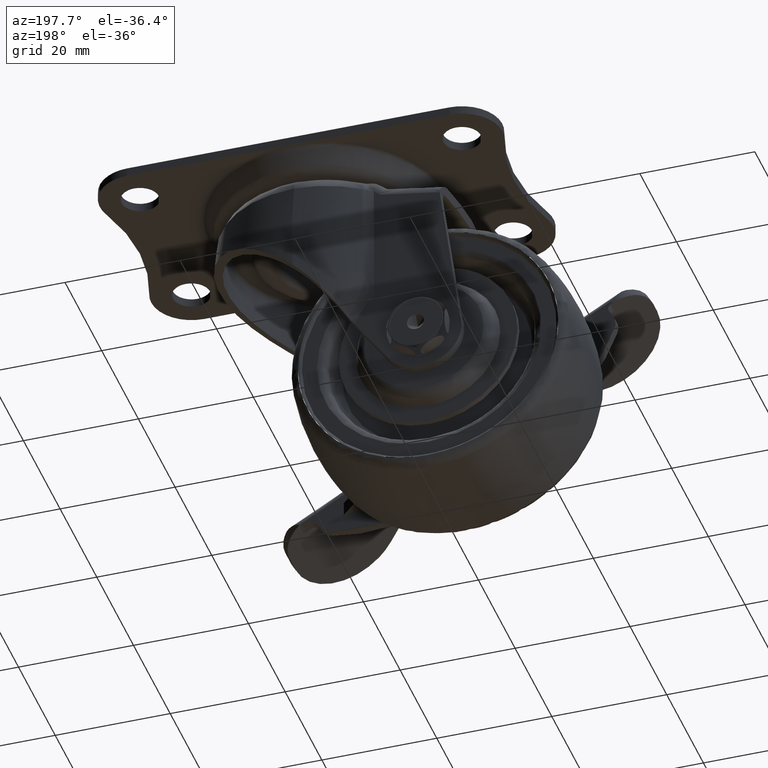
[diagram: clean part render]
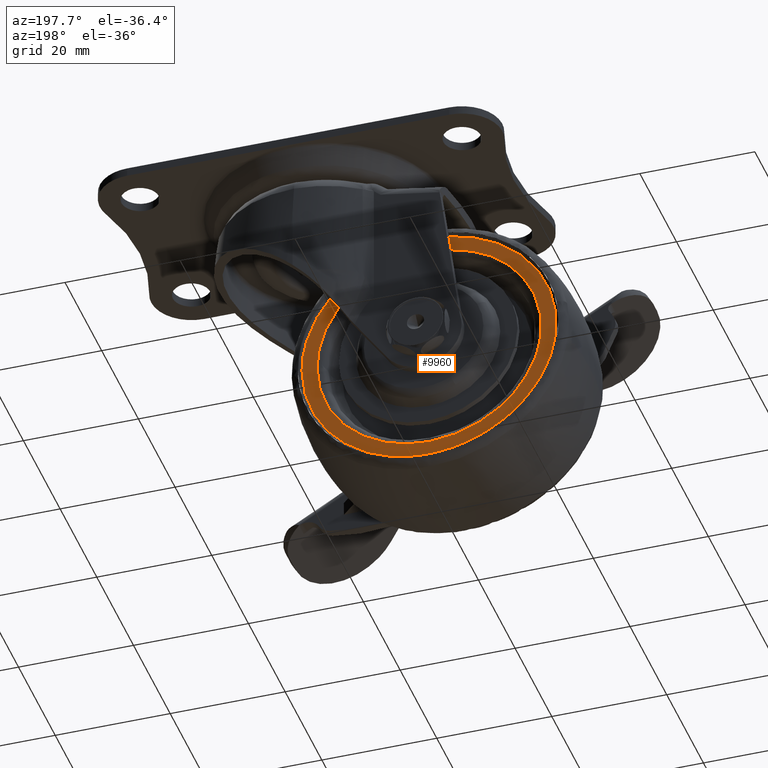
[diagram: same view with one face highlighted and labeled with its STEP entity id]
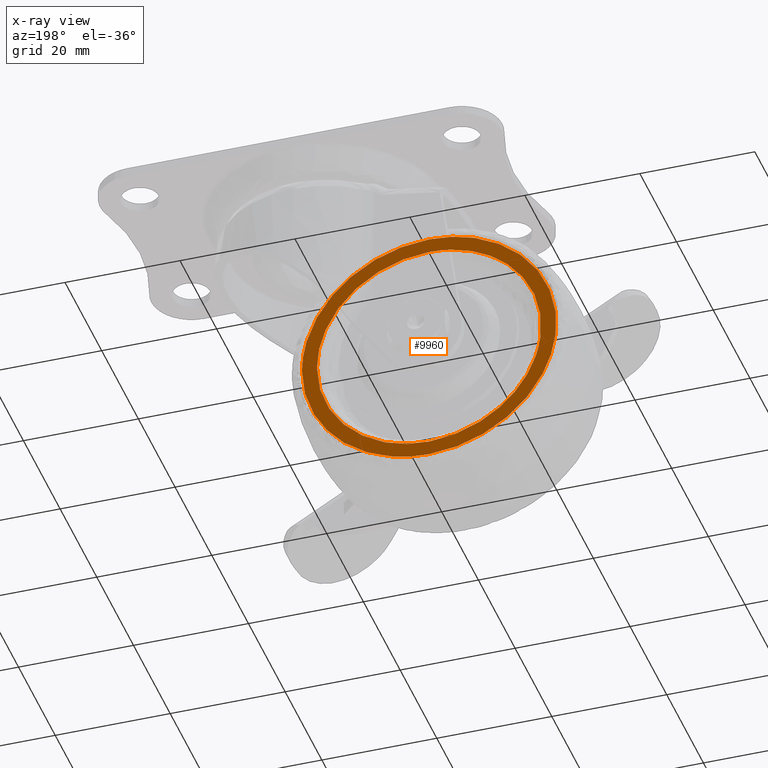
[diagram: x-ray of the same camera — body ghosted, the highlighted face saturated]
A machine part, auxiliary view. The second image highlights one B-rep face of the part: STEP entity #9960.
The next image is the same camera in x-ray: the body ghosted, the highlighted face saturated — about 0% of this face is hidden behind the body in this view.
In plain terms, the highlighted face is a freeform B-spline surface patch.
Its self-contained STEP definition (entity closure, byte-faithful):
#3783=CARTESIAN_POINT('',(1.117139999999995,10.000000001158259,-38.500000000000000));
#3784=VERTEX_POINT('',#3783);
#3795=CARTESIAN_POINT('',(-21.0,10.0,-16.382860000000001));
#3796=VERTEX_POINT('',#3795);
#3797=CARTESIAN_POINT('',(-21.0,10.0,-16.382860000000001));
#3798=CARTESIAN_POINT('',(-19.597668612473111,9.999999999999961,-16.382714062767452));
#3799=CARTESIAN_POINT('',(-16.747813315417101,10.000000000014300,-16.654762154562562));
#3800=CARTESIAN_POINT('',(-12.869417315045830,10.000000000074410,-17.805264972067281));
#3801=CARTESIAN_POINT('',(-9.261767126798013,10.000000000169800,-19.621228168060959));
#3802=CARTESIAN_POINT('',(-6.421417022247506,10.000000000280080,-21.741386444102289));
#3803=CARTESIAN_POINT('',(-3.833621783660754,10.000000000420821,-24.409772738800399));
#3804=CARTESIAN_POINT('',(-1.871784365047652,10.000000000565979,-27.195370562091110));
#3805=CARTESIAN_POINT('',(-0.398524237404279,10.000000000727050,-30.261758170341199));
#3806=CARTESIAN_POINT('',(0.776510949630704,10.000000000918840,-33.931329423065442));
#3807=CARTESIAN_POINT('',(1.117631621534591,10.000000001063571,-36.690490308820237));
#3808=CARTESIAN_POINT('',(1.117139999999995,10.000000001158259,-38.500000000000000));
#3809=B_SPLINE_CURVE_WITH_KNOTS('',3,(#3797,#3798,#3799,#3800,#3801,#3802,#3803,#3804,#3805,#3806,#3807,#3808),.UNSPECIFIED.,.F.,.U.,(4,1,1,1,1,1,1,1,1,4),(0.000000075460107,4.206979677414555,8.549685039589555,12.078127641652459,16.285116569062751,19.134998776627381,23.206271948875550,26.463311557916469,29.313211564507579,34.741576770575193),.UNSPECIFIED.);
#3810=EDGE_CURVE('',#3796,#3784,#3809,.T.);
#3812=CARTESIAN_POINT('',(-42.969212578638754,10.000000001110370,-41.053738525021963));
#3813=VERTEX_POINT('',#3812);
#3814=CARTESIAN_POINT('',(-42.969212578638754,10.000000001110370,-41.053738525021963));
#3815=CARTESIAN_POINT('',(-43.126352847666247,10.000000001002990,-39.702923084106359));
#3816=CARTESIAN_POINT('',(-43.192685754034223,10.000000000787130,-36.874684059833541));
#3817=CARTESIAN_POINT('',(-42.574112850193572,10.000000000532200,-33.217352030111911));
#3818=CARTESIAN_POINT('',(-41.515388594567114,10.000000000331729,-30.082771756980222));
#3819=CARTESIAN_POINT('',(-40.327717626903947,10.000000000187100,-27.629346156129461));
#3820=CARTESIAN_POINT('',(-38.658171538705290,10.000000000050401,-25.058706379420769));
#3821=CARTESIAN_POINT('',(-36.671202377238131,9.999999999946422,-22.782466820804931));
#3822=CARTESIAN_POINT('',(-34.231682204054863,9.999999999872173,-20.693305151928961));
#3823=CARTESIAN_POINT('',(-31.490429664618151,9.999999999832729,-18.923917371199870));
#3824=CARTESIAN_POINT('',(-28.457030760290358,9.999999999835453,-17.587311176635271));
#3825=CARTESIAN_POINT('',(-24.885443582164470,9.999999999885004,-16.623771599104771));
#3826=CARTESIAN_POINT('',(-22.457082680304499,9.999999999950125,-16.382650618992770));
#3827=CARTESIAN_POINT('',(-21.0,10.0,-16.382860000000001));
#3828=B_SPLINE_CURVE_WITH_KNOTS('',3,(#3814,#3815,#3816,#3817,#3818,#3819,#3820,#3821,#3822,#3823,#3824,#3825,#3826,#3827),.UNSPECIFIED.,.F.,.U.,(4,1,1,1,1,1,1,1,1,1,1,4),(0.000000091699548,4.079771669591196,8.451014838291577,11.073756390592530,13.987915225135410,16.610662056310179,20.253252227245820,23.021724672094930,26.227283404332329,30.015681391480850,32.929830817811137,37.301036967323242),.UNSPECIFIED.);
#3829=EDGE_CURVE('',#3813,#3796,#3828,.T.);
#3885=CARTESIAN_POINT('',(-21.0,10.0,-60.617139999999999));
#3886=VERTEX_POINT('',#3885);
#3887=CARTESIAN_POINT('',(-21.0,10.0,-60.617139999999999));
#3888=CARTESIAN_POINT('',(-22.215207504066768,10.000000000000020,-60.617240431784403));
#3889=CARTESIAN_POINT('',(-24.100832594857330,10.000000000008781,-60.461305177566523));
#3890=CARTESIAN_POINT('',(-27.136558351859460,10.000000000045700,-59.813369843526822));
#3891=CARTESIAN_POINT('',(-29.754411080261949,10.000000000097859,-58.892646572637418));
#3892=CARTESIAN_POINT('',(-32.583815411084352,10.000000000181499,-57.418538023420403));
#3893=CARTESIAN_POINT('',(-35.400390861623478,10.000000000294280,-55.433976848337927));
#3894=CARTESIAN_POINT('',(-37.897090409130087,10.000000000436421,-52.928151820369749));
#3895=CARTESIAN_POINT('',(-39.942958304857576,10.000000000599410,-50.054571684068549));
#3896=CARTESIAN_POINT('',(-41.299855303056702,10.000000000747690,-47.444981631951471));
#3897=CARTESIAN_POINT('',(-42.395811019369340,10.000000000920160,-44.404103377570173));
#3898=CARTESIAN_POINT('',(-42.824167486698897,10.000000001039460,-42.302454585428812));
#3899=CARTESIAN_POINT('',(-42.969212578638754,10.000000001110370,-41.053738525021963));
#3900=B_SPLINE_CURVE_WITH_KNOTS('',3,(#3887,#3888,#3889,#3890,#3891,#3892,#3893,#3894,#3895,#3896,#3897,#3898,#3899),.UNSPECIFIED.,.F.,.U.,(4,1,1,1,1,1,1,1,1,1,4),(0.000000064699407,3.645604479217287,5.656999690478600,9.302648992841487,11.942597278428041,15.211096325886990,19.610965959967540,22.502334927828748,25.770842636608890,28.410797224227860,32.182118348520291),.UNSPECIFIED.);
#3901=EDGE_CURVE('',#3886,#3813,#3900,.T.);
#3903=CARTESIAN_POINT('',(1.117139999999995,10.000000001158259,-38.500000000000000));
#3904=CARTESIAN_POINT('',(1.117295749306937,10.000000001084819,-39.902330204437916));
#3905=CARTESIAN_POINT('',(0.875380376876827,10.000000000952131,-42.435513764107142));
#3906=CARTESIAN_POINT('',(-0.189534347268503,10.000000000748310,-46.330451659859790));
#3907=CARTESIAN_POINT('',(-1.950390327203235,10.000000000554561,-50.024459690159382));
#3908=CARTESIAN_POINT('',(-4.353018113840912,10.000000000387439,-53.222497452982523));
#3909=CARTESIAN_POINT('',(-7.054135610273043,10.000000000253310,-55.778329457196612));
#3910=CARTESIAN_POINT('',(-9.631296405638784,10.000000000160410,-57.558119331314373));
#3911=CARTESIAN_POINT('',(-12.793202401077910,10.000000000077341,-59.137659644395839));
#3912=CARTESIAN_POINT('',(-16.476440266936770,10.000000000016390,-60.304446979412951));
#3913=CARTESIAN_POINT('',(-19.461954139224929,10.000000000000011,-60.617382754132208));
#3914=CARTESIAN_POINT('',(-21.0,10.0,-60.617139999999999));
#3915=B_SPLINE_CURVE_WITH_KNOTS('',3,(#3903,#3904,#3905,#3906,#3907,#3908,#3909,#3910,#3911,#3912,#3913,#3914),.UNSPECIFIED.,.F.,.U.,(4,1,1,1,1,1,1,1,1,4),(0.000000075440582,4.206979677395896,7.599718812346975,12.078127641637900,16.420868762032601,19.542125038655339,23.206271948866490,25.784764527852548,30.127484882849931,34.741576770575222),.UNSPECIFIED.);
#3916=EDGE_CURVE('',#3784,#3886,#3915,.T.);
#3968=CARTESIAN_POINT('',(-40.380129896518838,9.999999999999998,-40.752779163739433));
#3969=VERTEX_POINT('',#3968);
#3970=CARTESIAN_POINT('',(-21.0,10.0,-18.989376000000000));
#3971=VERTEX_POINT('',#3970);
#3972=CARTESIAN_POINT('',(-40.380129896518838,9.999999999999998,-40.752779163739433));
#3973=CARTESIAN_POINT('',(-40.518792340620230,9.999999999999973,-39.561153246527702));
#3974=CARTESIAN_POINT('',(-40.566044198727290,10.000000000000050,-37.539424286879701));
#3975=CARTESIAN_POINT('',(-40.206255418538667,9.999999999999949,-34.815621516488079));
#3976=CARTESIAN_POINT('',(-39.569502542283857,10.000000000000020,-32.320846714640872));
#3977=CARTESIAN_POINT('',(-38.504335948734237,9.999999999999938,-29.691792522857352));
#3978=CARTESIAN_POINT('',(-37.007685136286703,10.000000000000201,-27.230790248665940));
#3979=CARTESIAN_POINT('',(-35.045391208941673,9.999999999999837,-24.843462039059609));
#3980=CARTESIAN_POINT('',(-32.956902010823200,10.000000000000110,-22.982063933254128));
#3981=CARTESIAN_POINT('',(-30.144064540519960,9.999999999999863,-21.166540215357660));
#3982=CARTESIAN_POINT('',(-27.302322559496531,10.000000000000011,-19.925492493384748));
#3983=CARTESIAN_POINT('',(-24.041973865220189,10.000000000000050,-19.148952557811270));
#3984=CARTESIAN_POINT('',(-22.028284247359700,9.999999999999986,-18.989305750616172));
#3985=CARTESIAN_POINT('',(-21.0,10.0,-18.989376000000000));
#3986=B_SPLINE_CURVE_WITH_KNOTS('',3,(#3972,#3973,#3974,#3975,#3976,#3977,#3978,#3979,#3980,#3981,#3982,#3983,#3984,#3985),.UNSPECIFIED.,.F.,.U.,(4,1,1,1,1,1,1,1,1,1,1,4),(0.000000096415484,3.598971376518605,6.041163994234381,8.226273389557004,11.311125859590540,14.524557167969000,16.838133180349448,20.565678166022209,22.879319973896841,26.863930430455870,29.820244515083889,32.905091122423272),.UNSPECIFIED.);
#3987=EDGE_CURVE('',#3969,#3971,#3986,.T.);
#3989=CARTESIAN_POINT('',(-1.489376000402693,10.0,-38.499999999999993));
#3990=VERTEX_POINT('',#3989);
#3991=CARTESIAN_POINT('',(-21.0,10.0,-18.989376000000000));
#3992=CARTESIAN_POINT('',(-19.802843410814319,9.999999999999982,-18.989261232103878));
#3993=CARTESIAN_POINT('',(-17.408561231694730,10.000000000000030,-19.210402060815650));
#3994=CARTESIAN_POINT('',(-14.208360493752330,9.999999999999986,-20.117157307800721));
#3995=CARTESIAN_POINT('',(-11.637049137544590,9.999999999999988,-21.323790056918071));
#3996=CARTESIAN_POINT('',(-9.374726123145695,10.000000000000060,-22.756360363071000));
#3997=CARTESIAN_POINT('',(-7.107951303649648,9.999999999999886,-24.663574655910530));
#3998=CARTESIAN_POINT('',(-5.147059436666464,10.000000000000050,-26.994007337635072));
#3999=CARTESIAN_POINT('',(-3.755990745869467,9.999999999999995,-29.283172394340760));
#4000=CARTESIAN_POINT('',(-2.734107460512927,9.999999999999986,-31.496163014853089));
#4001=CARTESIAN_POINT('',(-1.779333767240396,10.000000000000091,-34.509608936960170));
#4002=CARTESIAN_POINT('',(-1.489036549242824,9.999999999999799,-36.983571746165971));
#4003=CARTESIAN_POINT('',(-1.489376000402693,10.0,-38.499999999999993));
#4004=B_SPLINE_CURVE_WITH_KNOTS('',3,(#3991,#3992,#3993,#3994,#3995,#3996,#3997,#3998,#3999,#4000,#4001,#4002,#4003),.UNSPECIFIED.,.F.,.U.,(4,1,1,1,1,1,1,1,1,1,4),(0.000000080443762,3.591458367823336,7.182950245648566,9.936433482373982,12.091312156500191,15.203964945086700,18.795386603021051,21.189697465891939,23.224881262031261,26.098071536013219,30.647264588823720),.UNSPECIFIED.);
#4005=EDGE_CURVE('',#3971,#3990,#4004,.T.);
#4059=CARTESIAN_POINT('',(-21.0,10.0,-58.010624000000000));
#4060=VERTEX_POINT('',#4059);
#4061=CARTESIAN_POINT('',(-21.0,10.0,-58.010624000000000));
#4062=CARTESIAN_POINT('',(-22.145928245109769,10.000000000000020,-58.010747000035032));
#4063=CARTESIAN_POINT('',(-23.846285245273901,9.999999999999957,-57.860354416902382));
#4064=CARTESIAN_POINT('',(-26.302211283806919,10.000000000000011,-57.314158140914280));
#4065=CARTESIAN_POINT('',(-28.830281473358511,10.000000000000030,-56.465378587766168));
#4066=CARTESIAN_POINT('',(-31.589467298385280,10.000000000000020,-55.007926554645742));
#4067=CARTESIAN_POINT('',(-34.074691162828643,10.000000000000020,-53.070262404625502));
#4068=CARTESIAN_POINT('',(-36.078951100610517,9.999999999999972,-50.988938028556973));
#4069=CARTESIAN_POINT('',(-37.568931036439302,10.000000000000050,-48.908833334043557));
#4070=CARTESIAN_POINT('',(-38.842638557536048,9.999999999999893,-46.525840738167958));
#4071=CARTESIAN_POINT('',(-39.829869675218333,10.000000000000210,-43.926425953719857));
#4072=CARTESIAN_POINT('',(-40.252175670560021,9.999999999999725,-41.854337171419530));
#4073=CARTESIAN_POINT('',(-40.380129896518838,9.999999999999998,-40.752779163739433));
#4074=B_SPLINE_CURVE_WITH_KNOTS('',3,(#4061,#4062,#4063,#4064,#4065,#4066,#4067,#4068,#4069,#4070,#4071,#4072,#4073),.UNSPECIFIED.,.F.,.U.,(4,1,1,1,1,1,1,1,1,1,4),(0.000000066982007,3.437757723034533,5.101213647210809,7.540945312559437,11.422344622170611,14.416497531933331,16.967095518914409,20.072214977119071,22.068358343609969,25.062560445614938,28.389439619684179),.UNSPECIFIED.);
#4075=EDGE_CURVE('',#4060,#3969,#4074,.T.);
#4081=CARTESIAN_POINT('',(-1.489376000402693,10.0,-38.499999999999993));
#4082=CARTESIAN_POINT('',(-1.489204001018103,9.999999999999988,-39.776971580107080));
#4083=CARTESIAN_POINT('',(-1.705660593668862,9.999999999999998,-41.971688860164967));
#4084=CARTESIAN_POINT('',(-2.570865249840661,9.999999999999986,-45.135925307040537));
#4085=CARTESIAN_POINT('',(-3.828920299421935,9.999999999999954,-47.950868446356900));
#4086=CARTESIAN_POINT('',(-5.423376527107485,10.000000000000050,-50.352907606794311));
#4087=CARTESIAN_POINT('',(-7.276581059956643,9.999999999999993,-52.448706341534489));
#4088=CARTESIAN_POINT('',(-9.422523139217931,10.000000000000020,-54.311402952459026));
#4089=CARTESIAN_POINT('',(-12.286811376346360,9.999999999999940,-56.076404089350241));
#4090=CARTESIAN_POINT('',(-15.275259177779789,10.000000000000160,-57.239698188044727));
#4091=CARTESIAN_POINT('',(-18.246563052963889,9.999999999999647,-57.878113429662108));
#4092=CARTESIAN_POINT('',(-20.042273872857901,10.000000000000570,-58.010678121417349));
#4093=CARTESIAN_POINT('',(-21.0,10.0,-58.010624000000000));
#4094=B_SPLINE_CURVE_WITH_KNOTS('',3,(#4081,#4082,#4083,#4084,#4085,#4086,#4087,#4088,#4089,#4090,#4091,#4092,#4093),.UNSPECIFIED.,.F.,.U.,(4,1,1,1,1,1,1,1,1,1,4),(0.000000080334285,3.830883811834969,6.584366270560601,9.816705573236455,13.049059010573369,15.203964945028851,18.196805792807680,21.548852704005778,25.260058297882399,27.774091133609240,30.647264588823941),.UNSPECIFIED.);
#4095=EDGE_CURVE('',#3990,#4060,#4094,.T.);
#9943=CARTESIAN_POINT('',(-45.326519874736249,10.0,-62.826644276464243));
#9944=CARTESIAN_POINT('',(-45.326519874736249,10.0,-14.173356514506320));
#9945=CARTESIAN_POINT('',(3.326637566971692,10.0,-62.826644276464243));
#9946=CARTESIAN_POINT('',(3.326637566971692,10.0,-14.173356514506320));
#9947=B_SPLINE_SURFACE_WITH_KNOTS('',1,1,((#9943,#9945),(#9944,#9946)),.UNSPECIFIED.,.F.,.F.,.U.,(2,2),(2,2),(0.0,48.653287761957912),(0.0,48.653157441707940),.UNSPECIFIED.);
#9948=ORIENTED_EDGE('',*,*,#3810,.T.);
#9949=ORIENTED_EDGE('',*,*,#3916,.T.);
#9950=ORIENTED_EDGE('',*,*,#3901,.T.);
#9951=ORIENTED_EDGE('',*,*,#3829,.T.);
#9952=EDGE_LOOP('',(#9948,#9949,#9950,#9951));
#9953=FACE_OUTER_BOUND('',#9952,.T.);
#9954=ORIENTED_EDGE('',*,*,#4005,.F.);
#9955=ORIENTED_EDGE('',*,*,#3987,.F.);
#9956=ORIENTED_EDGE('',*,*,#4075,.F.);
#9957=ORIENTED_EDGE('',*,*,#4095,.F.);
#9958=EDGE_LOOP('',(#9954,#9955,#9956,#9957));
#9959=FACE_BOUND('',#9958,.T.);
#9960=ADVANCED_FACE('',(#9953,#9959),#9947,.T.);